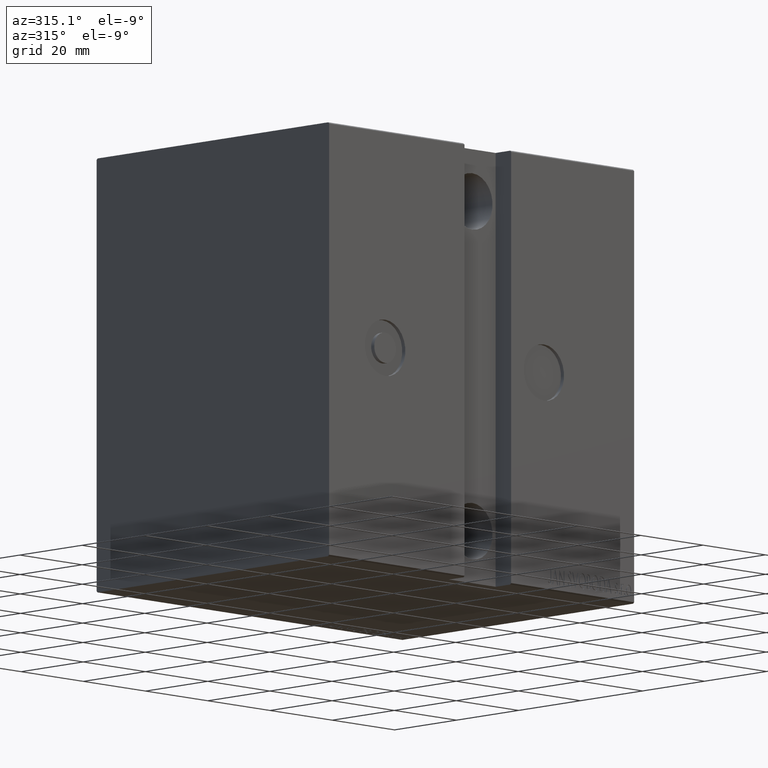
[diagram: clean part render]
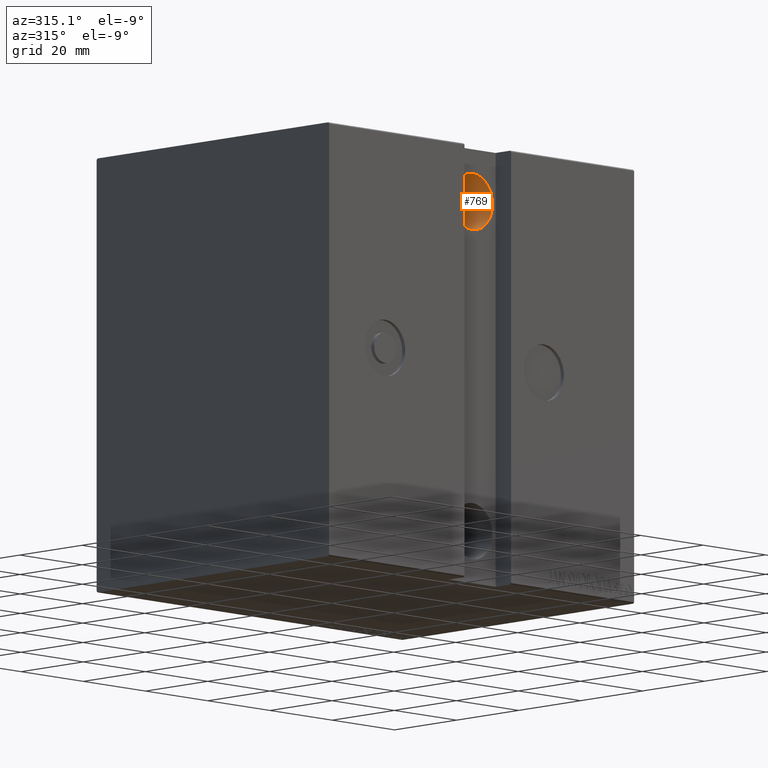
[diagram: same view with one face highlighted and labeled with its STEP entity id]
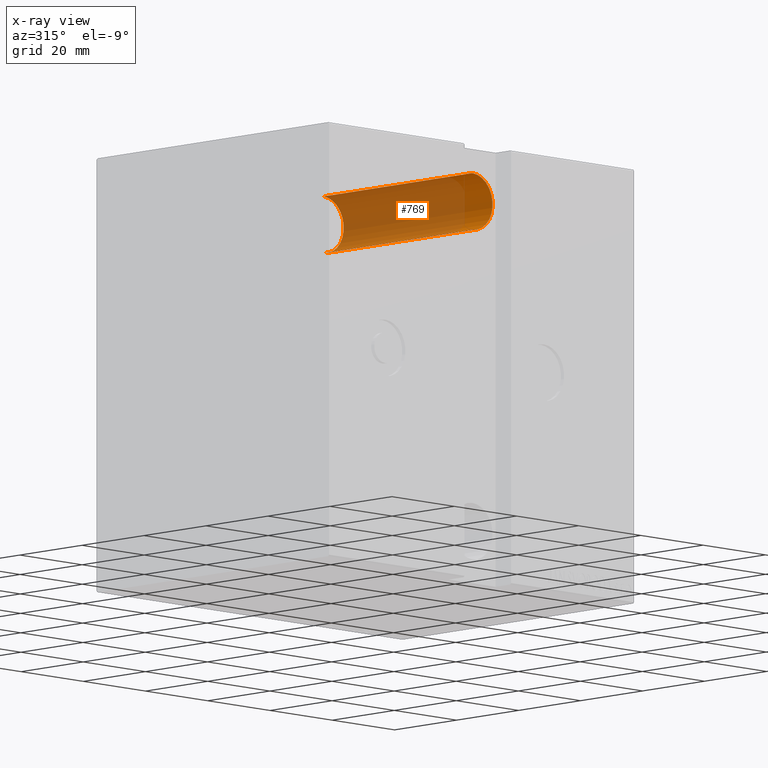
[diagram: x-ray of the same camera — body ghosted, the highlighted face saturated]
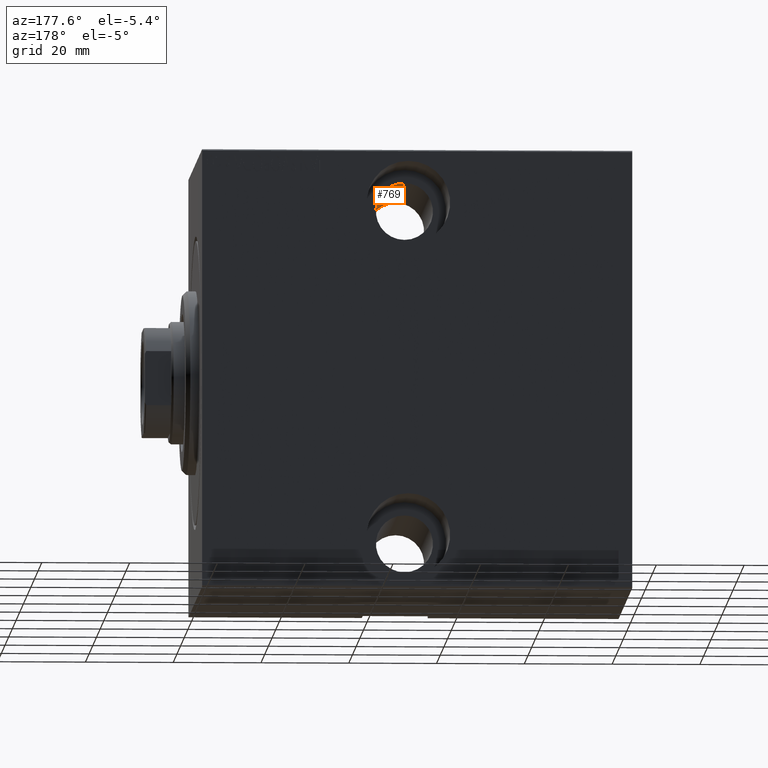
[diagram: same view with one face highlighted and labeled with its STEP entity id]
A machine part, auxiliary view. The second image highlights one B-rep face of the part: STEP entity #769.
The next image is the same camera in x-ray: the body ghosted, the highlighted face saturated — about 83% of this face is hidden behind the body in this view.
A second angle (auxiliary view) of the same face is appended — the face is thin or edge-on in the first view.
In plain terms, the highlighted cylindrical surface (edge-blend (fillet) strip) has radius 6.5 mm, axis along (0, -1, 0).
Its self-contained STEP definition (entity closure, byte-faithful):
#769 = ADVANCED_FACE ( 'NONE', ( #10950 ), #17425, .F. ) ;
#1605 = CARTESIAN_POINT ( 'NONE',  ( 47.00000000000002132, 32.50000000000000000, 38.00000000000000000 ) ) ;
#3007 = LINE ( 'NONE', #26263, #23597 ) ;
#4578 = VERTEX_POINT ( 'NONE', #10980 ) ;
#6083 = DIRECTION ( 'NONE',  ( 0.000000000000000000, -2.668805347656626678E-16, -1.000000000000000000 ) ) ;
#8077 = DIRECTION ( 'NONE',  ( 0.000000000000000000, -1.000000000000000000, 0.000000000000000000 ) ) ;
#8137 = DIRECTION ( 'NONE',  ( -0.000000000000000000, 1.000000000000000000, -0.000000000000000000 ) ) ;
#8787 = VECTOR ( 'NONE', #36738, 1000.000000000000000 ) ;
#9027 = EDGE_CURVE ( 'NONE', #4578, #33145, #19950, .T. ) ;
#9221 = CIRCLE ( 'NONE', #31958, 6.499999999999999112 ) ;
#10950 = FACE_OUTER_BOUND ( 'NONE', #14117, .T. ) ;
#10980 = CARTESIAN_POINT ( 'NONE',  ( 47.00000000000002132, -15.49999999999999112, 44.50000000000000000 ) ) ;
#11453 = CARTESIAN_POINT ( 'NONE',  ( 47.00000000000002132, 32.50000000000000000, 31.50000000000000000 ) ) ;
#12704 = DIRECTION ( 'NONE',  ( -0.000000000000000000, 1.000000000000000000, -0.000000000000000000 ) ) ;
#14117 = EDGE_LOOP ( 'NONE', ( #41135, #14124, #19521, #41809 ) ) ;
#14124 = ORIENTED_EDGE ( 'NONE', *, *, #25158, .T. ) ;
#14901 = CIRCLE ( 'NONE', #39652, 6.499999999999999112 ) ;
#17425 = CYLINDRICAL_SURFACE ( 'NONE', #36197, 6.499999999999999112 ) ;
#17858 = CARTESIAN_POINT ( 'NONE',  ( 47.00000000000002132, -37.50000000000003553, 38.00000000000000000 ) ) ;
#19521 = ORIENTED_EDGE ( 'NONE', *, *, #33754, .F. ) ;
#19950 = LINE ( 'NONE', #23593, #8787 ) ;
#21634 = DIRECTION ( 'NONE',  ( 0.000000000000000000, 0.000000000000000000, -1.000000000000000000 ) ) ;
#21818 = DIRECTION ( 'NONE',  ( -0.000000000000000000, 1.000000000000000000, -1.963837897332234442E-16 ) ) ;
#22748 = EDGE_CURVE ( 'NONE', #37363, #4578, #14901, .T. ) ;
#23593 = CARTESIAN_POINT ( 'NONE',  ( 47.00000000000002132, -37.50000000000003553, 44.50000000000000000 ) ) ;
#23597 = VECTOR ( 'NONE', #12704, 1000.000000000000000 ) ;
#25158 = EDGE_CURVE ( 'NONE', #37363, #32001, #3007, .T. ) ;
#26263 = CARTESIAN_POINT ( 'NONE',  ( 47.00000000000002132, -37.50000000000003553, 31.50000000000000000 ) ) ;
#31928 = CARTESIAN_POINT ( 'NONE',  ( 47.00000000000002132, -15.49999999999999467, 31.50000000000000000 ) ) ;
#31958 = AXIS2_PLACEMENT_3D ( 'NONE', #1605, #8077, #21634 ) ;
#32001 = VERTEX_POINT ( 'NONE', #11453 ) ;
#33145 = VERTEX_POINT ( 'NONE', #41752 ) ;
#33754 = EDGE_CURVE ( 'NONE', #33145, #32001, #9221, .T. ) ;
#33780 = DIRECTION ( 'NONE',  ( 0.000000000000000000, 0.000000000000000000, 1.000000000000000000 ) ) ;
#36197 = AXIS2_PLACEMENT_3D ( 'NONE', #17858, #8137, #33780 ) ;
#36738 = DIRECTION ( 'NONE',  ( -0.000000000000000000, 1.000000000000000000, -0.000000000000000000 ) ) ;
#37363 = VERTEX_POINT ( 'NONE', #31928 ) ;
#38403 = CARTESIAN_POINT ( 'NONE',  ( 47.00000000000002132, -15.49999999999999289, 38.00000000000000000 ) ) ;
#39652 = AXIS2_PLACEMENT_3D ( 'NONE', #38403, #21818, #6083 ) ;
#41135 = ORIENTED_EDGE ( 'NONE', *, *, #22748, .F. ) ;
#41752 = CARTESIAN_POINT ( 'NONE',  ( 47.00000000000002132, 32.50000000000000000, 44.50000000000000000 ) ) ;
#41809 = ORIENTED_EDGE ( 'NONE', *, *, #9027, .F. ) ;